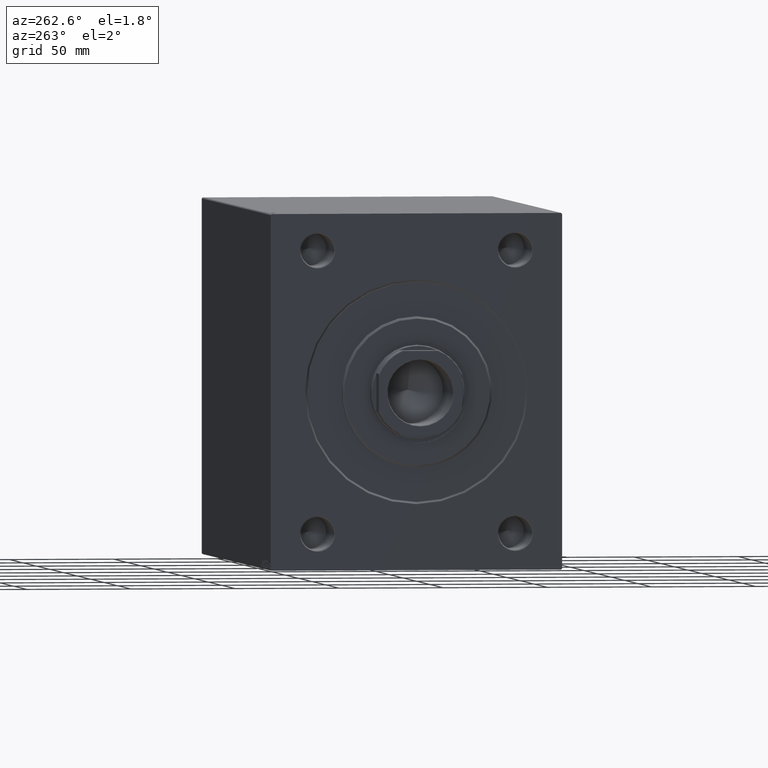
[diagram: clean part render]
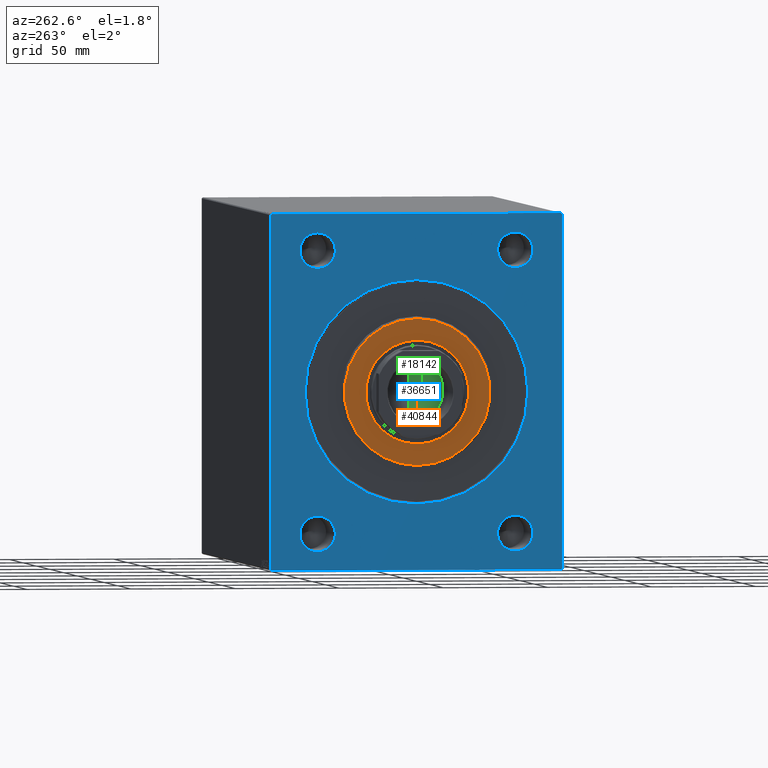
[diagram: same view with three faces highlighted in distinct colors, each labeled with its STEP entity id]
A machine part, auxiliary view with three faces highlighted in distinct colors.
Their STEP definitions:

[orange] entity #40844 — the highlighted planar face has unit normal (-1, 0, 0).
#477 = ORIENTED_EDGE ( 'NONE', *, *, #28163, .T. ) ;
#2916 = CARTESIAN_POINT ( 'NONE',  ( 3.000000000000000000, 4.347496136973104859E-15, -35.00000000000002842 ) ) ;
#3104 = FACE_OUTER_BOUND ( 'NONE', #8384, .T. ) ;
#3398 = DIRECTION ( 'NONE',  ( 1.000000000000000000, 0.000000000000000000, 0.000000000000000000 ) ) ;
#6612 = CARTESIAN_POINT ( 'NONE',  ( 3.000000000000000000, 0.000000000000000000, -24.75000000000000355 ) ) ;
#7415 = VERTEX_POINT ( 'NONE', #15531 ) ;
#8384 = EDGE_LOOP ( 'NONE', ( #477, #18015 ) ) ;
#11463 = CARTESIAN_POINT ( 'NONE',  ( 3.000000000000000000, 0.000000000000000000, 0.000000000000000000 ) ) ;
#13387 = AXIS2_PLACEMENT_3D ( 'NONE', #15377, #14723, #15161 ) ;
#14723 = DIRECTION ( 'NONE',  ( 1.000000000000000000, 0.000000000000000000, 0.000000000000000000 ) ) ;
#15161 = DIRECTION ( 'NONE',  ( 0.000000000000000000, 0.000000000000000000, -1.000000000000000000 ) ) ;
#15377 = CARTESIAN_POINT ( 'NONE',  ( 3.000000000000000000, 0.000000000000000000, 0.000000000000000000 ) ) ;
#15451 = CIRCLE ( 'NONE', #16163, 35.00000000000002842 ) ;
#15531 = CARTESIAN_POINT ( 'NONE',  ( 3.000000000000000000, 0.000000000000000000, 35.00000000000002842 ) ) ;
#15770 = AXIS2_PLACEMENT_3D ( 'NONE', #34352, #17573, #30350 ) ;
#16163 = AXIS2_PLACEMENT_3D ( 'NONE', #11463, #42296, #42070 ) ;
#16948 = AXIS2_PLACEMENT_3D ( 'NONE', #18134, #27754, #38481 ) ;
#17573 = DIRECTION ( 'NONE',  ( 1.000000000000000000, -0.000000000000000000, 0.000000000000000000 ) ) ;
#18015 = ORIENTED_EDGE ( 'NONE', *, *, #23642, .T. ) ;
#18134 = CARTESIAN_POINT ( 'NONE',  ( 3.000000000000000000, 0.000000000000000000, 0.000000000000000000 ) ) ;
#21150 = ORIENTED_EDGE ( 'NONE', *, *, #30678, .F. ) ;
#21955 = CIRCLE ( 'NONE', #13387, 24.75000000000000355 ) ;
#22657 = CIRCLE ( 'NONE', #16948, 35.00000000000002842 ) ;
#23642 = EDGE_CURVE ( 'NONE', #24786, #7415, #15451, .T. ) ;
#24786 = VERTEX_POINT ( 'NONE', #2916 ) ;
#26866 = VERTEX_POINT ( 'NONE', #6612 ) ;
#27484 = EDGE_CURVE ( 'NONE', #42463, #26866, #21955, .T. ) ;
#27726 = AXIS2_PLACEMENT_3D ( 'NONE', #33996, #3398, #30643 ) ;
#27754 = DIRECTION ( 'NONE',  ( 1.000000000000000000, -0.000000000000000000, 0.000000000000000000 ) ) ;
#28163 = EDGE_CURVE ( 'NONE', #7415, #24786, #22657, .T. ) ;
#28395 = EDGE_LOOP ( 'NONE', ( #21150, #35548 ) ) ;
#30350 = DIRECTION ( 'NONE',  ( 0.000000000000000000, 0.000000000000000000, -1.000000000000000000 ) ) ;
#30643 = DIRECTION ( 'NONE',  ( 0.000000000000000000, 0.000000000000000000, -1.000000000000000000 ) ) ;
#30678 = EDGE_CURVE ( 'NONE', #26866, #42463, #32016, .T. ) ;
#32016 = CIRCLE ( 'NONE', #27726, 24.75000000000000355 ) ;
#33996 = CARTESIAN_POINT ( 'NONE',  ( 3.000000000000000000, 0.000000000000000000, 0.000000000000000000 ) ) ;
#34352 = CARTESIAN_POINT ( 'NONE',  ( 3.000000000000000000, 0.000000000000000000, 0.000000000000000000 ) ) ;
#35006 = CARTESIAN_POINT ( 'NONE',  ( 3.000000000000000000, 3.031000827889699650E-15, 24.75000000000000355 ) ) ;
#35548 = ORIENTED_EDGE ( 'NONE', *, *, #27484, .F. ) ;
#37055 = PLANE ( 'NONE',  #15770 ) ;
#38481 = DIRECTION ( 'NONE',  ( 0.000000000000000000, 0.000000000000000000, -1.000000000000000000 ) ) ;
#40844 = ADVANCED_FACE ( 'NONE', ( #3104, #44195 ), #37055, .T. ) ;
#42070 = DIRECTION ( 'NONE',  ( 0.000000000000000000, 0.000000000000000000, -1.000000000000000000 ) ) ;
#42296 = DIRECTION ( 'NONE',  ( 1.000000000000000000, -0.000000000000000000, 0.000000000000000000 ) ) ;
#42463 = VERTEX_POINT ( 'NONE', #35006 ) ;
#44195 = FACE_BOUND ( 'NONE', #28395, .T. ) ;

[blue] entity #36651 — the highlighted planar face has unit normal (1, 0, 0).
#226 = DIRECTION ( 'NONE',  ( 0.000000000000000000, 0.000000000000000000, -1.000000000000000000 ) ) ;
#412 = VECTOR ( 'NONE', #2501, 1000.000000000000000 ) ;
#730 = CARTESIAN_POINT ( 'NONE',  ( 0.000000000000000000, 47.50000000000000000, -67.50000000000001421 ) ) ;
#844 = CARTESIAN_POINT ( 'NONE',  ( 0.000000000000000000, -47.50000000000000000, -76.00000000000002842 ) ) ;
#996 = VERTEX_POINT ( 'NONE', #11565 ) ;
#1023 = CIRCLE ( 'NONE', #4621, 8.500000000000007105 ) ;
#1559 = CARTESIAN_POINT ( 'NONE',  ( 0.000000000000000000, -70.00000000000000000, 84.49999999999998579 ) ) ;
#1636 = FACE_BOUND ( 'NONE', #11729, .T. ) ;
#1938 = CARTESIAN_POINT ( 'NONE',  ( 0.000000000000000000, 0.000000000000000000, 53.50000000000002842 ) ) ;
#2501 = DIRECTION ( 'NONE',  ( -0.000000000000000000, 0.7071067811865378028, -0.7071067811865573427 ) ) ;
#2565 = EDGE_CURVE ( 'NONE', #6724, #2645, #3660, .T. ) ;
#2645 = VERTEX_POINT ( 'NONE', #844 ) ;
#3207 = DIRECTION ( 'NONE',  ( 1.000000000000000000, 0.000000000000000000, 0.000000000000000000 ) ) ;
#3280 = CIRCLE ( 'NONE', #13267, 8.500000000000007105 ) ;
#3310 = ORIENTED_EDGE ( 'NONE', *, *, #33927, .F. ) ;
#3660 = CIRCLE ( 'NONE', #34328, 8.500000000000007105 ) ;
#4087 = DIRECTION ( 'NONE',  ( 1.000000000000000000, 0.000000000000000000, 0.000000000000000000 ) ) ;
#4118 = PLANE ( 'NONE',  #32788 ) ;
#4621 = AXIS2_PLACEMENT_3D ( 'NONE', #730, #27332, #21494 ) ;
#5150 = CARTESIAN_POINT ( 'NONE',  ( 0.000000000000000000, 69.50000000000005684, -85.00000000000000000 ) ) ;
#5293 = VECTOR ( 'NONE', #41946, 999.9999999999998863 ) ;
#5991 = VECTOR ( 'NONE', #226, 1000.000000000000000 ) ;
#6054 = EDGE_LOOP ( 'NONE', ( #40467, #15437 ) ) ;
#6300 = CARTESIAN_POINT ( 'NONE',  ( 0.000000000000000000, 69.49999999999997158, 85.00000000000001421 ) ) ;
#6724 = VERTEX_POINT ( 'NONE', #23712 ) ;
#6823 = VECTOR ( 'NONE', #25237, 1000.000000000000000 ) ;
#7003 = CARTESIAN_POINT ( 'NONE',  ( 0.000000000000000000, 47.50000000000000000, 58.99999999999998579 ) ) ;
#7222 = DIRECTION ( 'NONE',  ( 0.000000000000000000, 0.000000000000000000, -1.000000000000000000 ) ) ;
#7692 = DIRECTION ( 'NONE',  ( 0.000000000000000000, 0.000000000000000000, -1.000000000000000000 ) ) ;
#7917 = CIRCLE ( 'NONE', #31462, 8.500000000000007105 ) ;
#7955 = EDGE_LOOP ( 'NONE', ( #43083, #30820 ) ) ;
#9082 = CARTESIAN_POINT ( 'NONE',  ( 0.000000000000000000, -69.49999999999995737, -85.00000000000000000 ) ) ;
#9521 = DIRECTION ( 'NONE',  ( -0.000000000000000000, -0.7071067811865376918, 0.7071067811865573427 ) ) ;
#9646 = ORIENTED_EDGE ( 'NONE', *, *, #36858, .F. ) ;
#10559 = CARTESIAN_POINT ( 'NONE',  ( 0.000000000000000000, 47.50000000000000000, 67.49999999999998579 ) ) ;
#10926 = VERTEX_POINT ( 'NONE', #7003 ) ;
#11128 = EDGE_CURVE ( 'NONE', #15725, #33333, #37548, .T. ) ;
#11152 = EDGE_CURVE ( 'NONE', #21209, #996, #38055, .T. ) ;
#11394 = LINE ( 'NONE', #1559, #6823 ) ;
#11565 = CARTESIAN_POINT ( 'NONE',  ( 0.000000000000000000, 6.551860375438343048E-15, -53.50000000000002842 ) ) ;
#11570 = CARTESIAN_POINT ( 'NONE',  ( 0.000000000000000000, -47.50000000000000000, -67.50000000000001421 ) ) ;
#11729 = EDGE_LOOP ( 'NONE', ( #41762, #15592 ) ) ;
#12242 = LINE ( 'NONE', #22509, #12815 ) ;
#12519 = EDGE_CURVE ( 'NONE', #16489, #35811, #14683, .T. ) ;
#12531 = CARTESIAN_POINT ( 'NONE',  ( 0.000000000000000000, -47.50000000000000000, 67.49999999999998579 ) ) ;
#12546 = LINE ( 'NONE', #6300, #412 ) ;
#12815 = VECTOR ( 'NONE', #29000, 1000.000000000000000 ) ;
#13023 = CARTESIAN_POINT ( 'NONE',  ( 0.000000000000000000, 70.00000000000000000, 85.00000000000001421 ) ) ;
#13235 = AXIS2_PLACEMENT_3D ( 'NONE', #40326, #26899, #32956 ) ;
#13267 = AXIS2_PLACEMENT_3D ( 'NONE', #25598, #42812, #39024 ) ;
#13315 = EDGE_CURVE ( 'NONE', #27024, #26442, #1023, .T. ) ;
#13407 = CARTESIAN_POINT ( 'NONE',  ( 0.000000000000000000, -70.00000000000000000, 84.99999999999998579 ) ) ;
#13546 = DIRECTION ( 'NONE',  ( 1.000000000000000000, 0.000000000000000000, 0.000000000000000000 ) ) ;
#13729 = CARTESIAN_POINT ( 'NONE',  ( 0.000000000000000000, 47.50000000000000000, -59.00000000000001421 ) ) ;
#14631 = VECTOR ( 'NONE', #33579, 1000.000000000000000 ) ;
#14683 = LINE ( 'NONE', #28318, #5293 ) ;
#15128 = DIRECTION ( 'NONE',  ( 1.000000000000000000, 0.000000000000000000, 0.000000000000000000 ) ) ;
#15249 = FACE_BOUND ( 'NONE', #20901, .T. ) ;
#15302 = EDGE_LOOP ( 'NONE', ( #15974, #21938 ) ) ;
#15330 = VERTEX_POINT ( 'NONE', #41419 ) ;
#15437 = ORIENTED_EDGE ( 'NONE', *, *, #15952, .T. ) ;
#15547 = EDGE_CURVE ( 'NONE', #15725, #15330, #11394, .T. ) ;
#15592 = ORIENTED_EDGE ( 'NONE', *, *, #32768, .T. ) ;
#15725 = VERTEX_POINT ( 'NONE', #17763 ) ;
#15729 = EDGE_CURVE ( 'NONE', #20654, #21483, #18928, .T. ) ;
#15952 = EDGE_CURVE ( 'NONE', #26442, #27024, #29628, .T. ) ;
#15974 = ORIENTED_EDGE ( 'NONE', *, *, #40315, .T. ) ;
#16489 = VERTEX_POINT ( 'NONE', #41256 ) ;
#16553 = CARTESIAN_POINT ( 'NONE',  ( 0.000000000000000000, -69.49999999999995737, -85.00000000000000000 ) ) ;
#17057 = CARTESIAN_POINT ( 'NONE',  ( 0.000000000000000000, 47.50000000000000000, 67.49999999999998579 ) ) ;
#17432 = EDGE_CURVE ( 'NONE', #2645, #6724, #3280, .T. ) ;
#17603 = EDGE_LOOP ( 'NONE', ( #40046, #23505, #22782, #39518, #9646, #42196, #3310, #26834 ) ) ;
#17763 = CARTESIAN_POINT ( 'NONE',  ( 0.000000000000000000, -70.00000000000000000, 84.49999999999998579 ) ) ;
#18516 = CIRCLE ( 'NONE', #30675, 53.50000000000002842 ) ;
#18928 = CIRCLE ( 'NONE', #31769, 8.500000000000007105 ) ;
#19160 = EDGE_CURVE ( 'NONE', #30329, #15330, #19488, .T. ) ;
#19271 = VECTOR ( 'NONE', #9521, 1000.000000000000114 ) ;
#19488 = LINE ( 'NONE', #13023, #14631 ) ;
#20076 = ORIENTED_EDGE ( 'NONE', *, *, #2565, .T. ) ;
#20210 = AXIS2_PLACEMENT_3D ( 'NONE', #40242, #44026, #36892 ) ;
#20285 = EDGE_CURVE ( 'NONE', #30329, #42763, #12546, .T. ) ;
#20654 = VERTEX_POINT ( 'NONE', #33810 ) ;
#20675 = DIRECTION ( 'NONE',  ( 0.000000000000000000, 0.000000000000000000, -1.000000000000000000 ) ) ;
#20901 = EDGE_LOOP ( 'NONE', ( #20076, #30406 ) ) ;
#21209 = VERTEX_POINT ( 'NONE', #1938 ) ;
#21281 = DIRECTION ( 'NONE',  ( 1.000000000000000000, 0.000000000000000000, 0.000000000000000000 ) ) ;
#21335 = CARTESIAN_POINT ( 'NONE',  ( 0.000000000000000000, -47.50000000000000000, 67.49999999999998579 ) ) ;
#21483 = VERTEX_POINT ( 'NONE', #31047 ) ;
#21494 = DIRECTION ( 'NONE',  ( 0.000000000000000000, 0.000000000000000000, -1.000000000000000000 ) ) ;
#21628 = CARTESIAN_POINT ( 'NONE',  ( 0.000000000000000000, 47.50000000000000000, 76.00000000000000000 ) ) ;
#21938 = ORIENTED_EDGE ( 'NONE', *, *, #31630, .T. ) ;
#22509 = CARTESIAN_POINT ( 'NONE',  ( 0.000000000000000000, 70.00000000000001421, -85.00000000000000000 ) ) ;
#22782 = ORIENTED_EDGE ( 'NONE', *, *, #19160, .F. ) ;
#23406 = CARTESIAN_POINT ( 'NONE',  ( 0.000000000000000000, -70.00000000000000000, -84.49999999999994316 ) ) ;
#23483 = CIRCLE ( 'NONE', #30640, 8.500000000000007105 ) ;
#23505 = ORIENTED_EDGE ( 'NONE', *, *, #15547, .T. ) ;
#23579 = AXIS2_PLACEMENT_3D ( 'NONE', #12531, #26157, #36671 ) ;
#23712 = CARTESIAN_POINT ( 'NONE',  ( 0.000000000000000000, -47.50000000000000000, -59.00000000000001421 ) ) ;
#24140 = VERTEX_POINT ( 'NONE', #21628 ) ;
#24640 = CARTESIAN_POINT ( 'NONE',  ( 0.000000000000000000, 0.000000000000000000, 0.000000000000000000 ) ) ;
#25237 = DIRECTION ( 'NONE',  ( -0.000000000000000000, 0.7071067811865672237, 0.7071067811865279218 ) ) ;
#25522 = FACE_BOUND ( 'NONE', #7955, .T. ) ;
#25598 = CARTESIAN_POINT ( 'NONE',  ( 0.000000000000000000, -47.50000000000000000, -67.50000000000001421 ) ) ;
#26157 = DIRECTION ( 'NONE',  ( 1.000000000000000000, 0.000000000000000000, 0.000000000000000000 ) ) ;
#26442 = VERTEX_POINT ( 'NONE', #43406 ) ;
#26834 = ORIENTED_EDGE ( 'NONE', *, *, #38822, .T. ) ;
#26899 = DIRECTION ( 'NONE',  ( 1.000000000000000000, 0.000000000000000000, 0.000000000000000000 ) ) ;
#27024 = VERTEX_POINT ( 'NONE', #13729 ) ;
#27332 = DIRECTION ( 'NONE',  ( 1.000000000000000000, 0.000000000000000000, 0.000000000000000000 ) ) ;
#28318 = CARTESIAN_POINT ( 'NONE',  ( 0.000000000000000000, 70.00000000000001421, -84.50000000000002842 ) ) ;
#28768 = DIRECTION ( 'NONE',  ( 0.000000000000000000, 0.000000000000000000, -1.000000000000000000 ) ) ;
#29000 = DIRECTION ( 'NONE',  ( 0.000000000000000000, -8.163404592832031500E-17, 1.000000000000000000 ) ) ;
#29264 = VECTOR ( 'NONE', #41676, 1000.000000000000000 ) ;
#29291 = VERTEX_POINT ( 'NONE', #16553 ) ;
#29628 = CIRCLE ( 'NONE', #13235, 8.500000000000007105 ) ;
#29840 = CARTESIAN_POINT ( 'NONE',  ( 0.000000000000000000, 70.00000000000000000, 84.49999999999997158 ) ) ;
#30329 = VERTEX_POINT ( 'NONE', #35369 ) ;
#30406 = ORIENTED_EDGE ( 'NONE', *, *, #17432, .T. ) ;
#30640 = AXIS2_PLACEMENT_3D ( 'NONE', #17057, #40990, #34063 ) ;
#30675 = AXIS2_PLACEMENT_3D ( 'NONE', #33796, #3207, #7222 ) ;
#30701 = CIRCLE ( 'NONE', #23579, 8.500000000000007105 ) ;
#30820 = ORIENTED_EDGE ( 'NONE', *, *, #39739, .T. ) ;
#30959 = LINE ( 'NONE', #40799, #29264 ) ;
#31047 = CARTESIAN_POINT ( 'NONE',  ( 0.000000000000000000, -47.50000000000000000, 58.99999999999998579 ) ) ;
#31462 = AXIS2_PLACEMENT_3D ( 'NONE', #10559, #4087, #34021 ) ;
#31630 = EDGE_CURVE ( 'NONE', #10926, #24140, #23483, .T. ) ;
#31769 = AXIS2_PLACEMENT_3D ( 'NONE', #21335, #13546, #20675 ) ;
#32768 = EDGE_CURVE ( 'NONE', #996, #21209, #18516, .T. ) ;
#32788 = AXIS2_PLACEMENT_3D ( 'NONE', #24640, #21281, #7692 ) ;
#32956 = DIRECTION ( 'NONE',  ( 0.000000000000000000, 0.000000000000000000, -1.000000000000000000 ) ) ;
#33333 = VERTEX_POINT ( 'NONE', #23406 ) ;
#33579 = DIRECTION ( 'NONE',  ( 0.000000000000000000, -1.000000000000000000, -1.982541115402065110E-16 ) ) ;
#33796 = CARTESIAN_POINT ( 'NONE',  ( 0.000000000000000000, 0.000000000000000000, 0.000000000000000000 ) ) ;
#33810 = CARTESIAN_POINT ( 'NONE',  ( 0.000000000000000000, -47.50000000000000000, 76.00000000000000000 ) ) ;
#33927 = EDGE_CURVE ( 'NONE', #29291, #35811, #30959, .T. ) ;
#34021 = DIRECTION ( 'NONE',  ( 0.000000000000000000, 0.000000000000000000, -1.000000000000000000 ) ) ;
#34063 = DIRECTION ( 'NONE',  ( 0.000000000000000000, 0.000000000000000000, -1.000000000000000000 ) ) ;
#34328 = AXIS2_PLACEMENT_3D ( 'NONE', #11570, #15128, #28768 ) ;
#34709 = FACE_OUTER_BOUND ( 'NONE', #17603, .T. ) ;
#34924 = FACE_BOUND ( 'NONE', #15302, .T. ) ;
#35369 = CARTESIAN_POINT ( 'NONE',  ( 0.000000000000000000, 69.49999999999997158, 85.00000000000001421 ) ) ;
#35811 = VERTEX_POINT ( 'NONE', #5150 ) ;
#36651 = ADVANCED_FACE ( 'NONE', ( #1636, #15249, #25522, #34924, #39161, #34709 ), #4118, .F. ) ;
#36671 = DIRECTION ( 'NONE',  ( 0.000000000000000000, 0.000000000000000000, -1.000000000000000000 ) ) ;
#36858 = EDGE_CURVE ( 'NONE', #16489, #42763, #12242, .T. ) ;
#36892 = DIRECTION ( 'NONE',  ( 0.000000000000000000, 0.000000000000000000, -1.000000000000000000 ) ) ;
#37548 = LINE ( 'NONE', #13407, #5991 ) ;
#38055 = CIRCLE ( 'NONE', #20210, 53.50000000000002842 ) ;
#38822 = EDGE_CURVE ( 'NONE', #29291, #33333, #40123, .T. ) ;
#39024 = DIRECTION ( 'NONE',  ( 0.000000000000000000, 0.000000000000000000, -1.000000000000000000 ) ) ;
#39161 = FACE_BOUND ( 'NONE', #6054, .T. ) ;
#39518 = ORIENTED_EDGE ( 'NONE', *, *, #20285, .T. ) ;
#39739 = EDGE_CURVE ( 'NONE', #21483, #20654, #30701, .T. ) ;
#40046 = ORIENTED_EDGE ( 'NONE', *, *, #11128, .F. ) ;
#40123 = LINE ( 'NONE', #9082, #19271 ) ;
#40242 = CARTESIAN_POINT ( 'NONE',  ( 0.000000000000000000, 0.000000000000000000, 0.000000000000000000 ) ) ;
#40315 = EDGE_CURVE ( 'NONE', #24140, #10926, #7917, .T. ) ;
#40326 = CARTESIAN_POINT ( 'NONE',  ( 0.000000000000000000, 47.50000000000000000, -67.50000000000001421 ) ) ;
#40467 = ORIENTED_EDGE ( 'NONE', *, *, #13315, .T. ) ;
#40799 = CARTESIAN_POINT ( 'NONE',  ( 0.000000000000000000, -70.00000000000000000, -85.00000000000000000 ) ) ;
#40990 = DIRECTION ( 'NONE',  ( 1.000000000000000000, 0.000000000000000000, 0.000000000000000000 ) ) ;
#41256 = CARTESIAN_POINT ( 'NONE',  ( 0.000000000000000000, 70.00000000000001421, -84.50000000000002842 ) ) ;
#41419 = CARTESIAN_POINT ( 'NONE',  ( 0.000000000000000000, -69.49999999999997158, 84.99999999999998579 ) ) ;
#41676 = DIRECTION ( 'NONE',  ( 0.000000000000000000, 1.000000000000000000, 0.000000000000000000 ) ) ;
#41762 = ORIENTED_EDGE ( 'NONE', *, *, #11152, .T. ) ;
#41946 = DIRECTION ( 'NONE',  ( 0.000000000000000000, -0.7071067811865376918, -0.7071067811865574537 ) ) ;
#42196 = ORIENTED_EDGE ( 'NONE', *, *, #12519, .T. ) ;
#42763 = VERTEX_POINT ( 'NONE', #29840 ) ;
#42812 = DIRECTION ( 'NONE',  ( 1.000000000000000000, 0.000000000000000000, 0.000000000000000000 ) ) ;
#43083 = ORIENTED_EDGE ( 'NONE', *, *, #15729, .T. ) ;
#43406 = CARTESIAN_POINT ( 'NONE',  ( 0.000000000000000000, 47.50000000000000000, -76.00000000000002842 ) ) ;
#44026 = DIRECTION ( 'NONE',  ( 1.000000000000000000, 0.000000000000000000, 0.000000000000000000 ) ) ;

[green] entity #18142 — the highlighted conical surface has half-angle 59 deg.
#1418 = EDGE_CURVE ( 'NONE', #16457, #13972, #41447, .T. ) ;
#6435 = DIRECTION ( 'NONE',  ( -0.8571673007021120005, 1.049727191138618326E-16, 0.5150380749100547106 ) ) ;
#7752 = ORIENTED_EDGE ( 'NONE', *, *, #15796, .F. ) ;
#11308 = CARTESIAN_POINT ( 'NONE',  ( -15.74999999999999289, 1.928818708657080556E-15, 206.0000000000000284 ) ) ;
#11386 = VECTOR ( 'NONE', #6435, 1000.000000000000000 ) ;
#12509 = VECTOR ( 'NONE', #28279, 1000.000000000000000 ) ;
#13972 = VERTEX_POINT ( 'NONE', #18265 ) ;
#15796 = EDGE_CURVE ( 'NONE', #16717, #13972, #22447, .T. ) ;
#16457 = VERTEX_POINT ( 'NONE', #11308 ) ;
#16717 = VERTEX_POINT ( 'NONE', #26252 ) ;
#17457 = AXIS2_PLACEMENT_3D ( 'NONE', #18777, #35781, #25489 ) ;
#18142 = ADVANCED_FACE ( 'NONE', ( #32209 ), #43165, .F. ) ;
#18265 = CARTESIAN_POINT ( 'NONE',  ( 15.74999999999999289, 0.000000000000000000, 206.0000000000000284 ) ) ;
#18777 = CARTESIAN_POINT ( 'NONE',  ( 0.000000000000000000, 0.000000000000000000, 206.0000000000000284 ) ) ;
#19079 = CARTESIAN_POINT ( 'NONE',  ( 0.000000000000000000, 0.000000000000000000, 206.0000000000000284 ) ) ;
#19807 = ORIENTED_EDGE ( 'NONE', *, *, #31240, .T. ) ;
#22447 = LINE ( 'NONE', #38784, #12509 ) ;
#23666 = ORIENTED_EDGE ( 'NONE', *, *, #1418, .T. ) ;
#25489 = DIRECTION ( 'NONE',  ( 1.000000000000000000, 0.000000000000000000, 0.000000000000000000 ) ) ;
#26252 = CARTESIAN_POINT ( 'NONE',  ( -1.199718644317817648E-14, 0.000000000000000000, 196.5364452503159498 ) ) ;
#28279 = DIRECTION ( 'NONE',  ( 0.8571673007021120005, 0.000000000000000000, 0.5150380749100547106 ) ) ;
#29142 = DIRECTION ( 'NONE',  ( -0.000000000000000000, -0.000000000000000000, 1.000000000000000000 ) ) ;
#31240 = EDGE_CURVE ( 'NONE', #16717, #16457, #43953, .T. ) ;
#32144 = EDGE_LOOP ( 'NONE', ( #7752, #19807, #23666 ) ) ;
#32209 = FACE_OUTER_BOUND ( 'NONE', #32144, .T. ) ;
#32802 = CARTESIAN_POINT ( 'NONE',  ( -15.74999999999999289, 1.928818708657080556E-15, 206.0000000000000284 ) ) ;
#34300 = AXIS2_PLACEMENT_3D ( 'NONE', #19079, #29142, #39657 ) ;
#35781 = DIRECTION ( 'NONE',  ( -0.000000000000000000, -0.000000000000000000, 1.000000000000000000 ) ) ;
#38784 = CARTESIAN_POINT ( 'NONE',  ( 15.74999999999999289, 0.000000000000000000, 206.0000000000000284 ) ) ;
#39657 = DIRECTION ( 'NONE',  ( 1.000000000000000000, 0.000000000000000000, 0.000000000000000000 ) ) ;
#41447 = CIRCLE ( 'NONE', #34300, 15.74999999999999289 ) ;
#43165 = CONICAL_SURFACE ( 'NONE', #17457, 15.74999999999999289, 1.029744258676653867 ) ;
#43953 = LINE ( 'NONE', #32802, #11386 ) ;